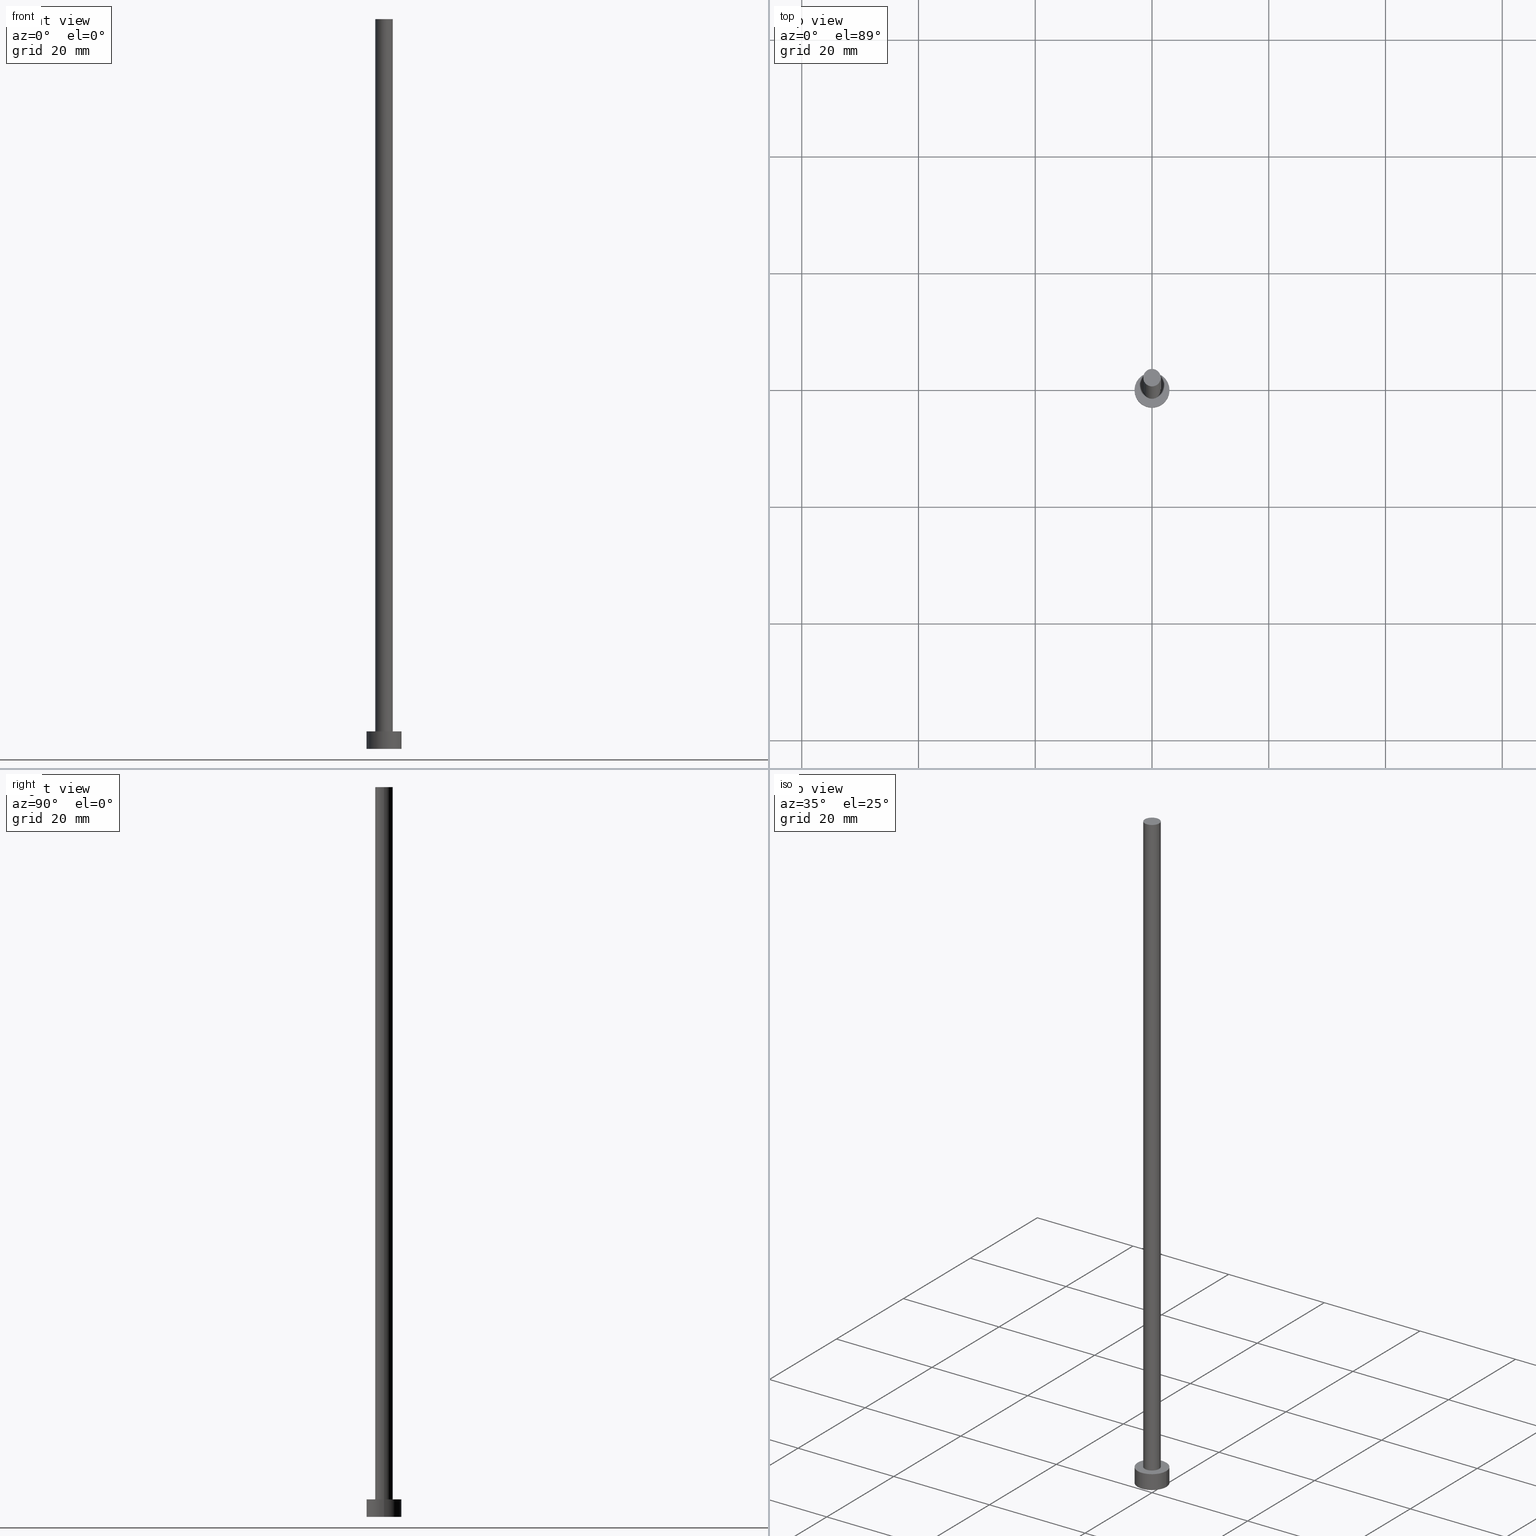
[diagram: canonical four-view strip — front | top / right | iso, engineering-drawing reading convention]
A machine part, canonical four-view strip (front | top / right | iso — engineering-drawing reading convention). The complete STEP part file that produces these views, byte-faithful:
ISO-10303-21;
HEADER;
FILE_DESCRIPTION (( 'STEP AP203' ),
    '1' );
FILE_NAME ('6e16.STEP',
    '2023-02-13T14:27:14',
    ( '' ),
    ( '' ),
    'SwSTEP 2.0',
    'SolidWorks 2019',
    '' );
FILE_SCHEMA (( 'CONFIG_CONTROL_DESIGN' ));
ENDSEC;

DATA;
#1 = APPROVAL ( #53, 'NEUR�EN�' ) ;
#2 = DIRECTION ( 'NONE',  ( 0.000000000000000000, 0.000000000000000000, 1.000000000000000000 ) ) ;
#3 = PRODUCT ( '6e16', '6e16', '', ( #25 ) ) ;
#4 = ORIENTED_EDGE ( 'NONE', *, *, #123, .T. ) ;
#5 = APPROVAL_PERSON_ORGANIZATION ( #157, #20, #119 ) ;
#6 = ORIENTED_EDGE ( 'NONE', *, *, #167, .F. ) ;
#7 = EDGE_LOOP ( 'NONE', ( #206, #4, #90, #148 ) ) ;
#8 = AXIS2_PLACEMENT_3D ( 'NONE', #182, #2, #85 ) ;
#9 = DIRECTION ( 'NONE',  ( -0.000000000000000000, -0.000000000000000000, -1.000000000000000000 ) ) ;
#10 = LINE ( 'NONE', #248, #233 ) ;
#11 = CARTESIAN_POINT ( 'NONE',  ( 0.000000000000000000, 0.000000000000000000, 0.000000000000000000 ) ) ;
#12 = PERSON ( 'NEUR�EN�', 'NEUR�EN�', 'NEUR�EN�', ('NEUR�EN�'), ('NEUR�EN�'), ('NEUR�EN�') ) ;
#13 = EDGE_CURVE ( 'NONE', #65, #198, #70, .T. ) ;
#14 = APPROVAL_STATUS ( 'not_yet_approved' ) ;
#15 = CIRCLE ( 'NONE', #8, 1.500000000000000222 ) ;
#16 = DATE_AND_TIME ( #77, #199 ) ;
#17 = CARTESIAN_POINT ( 'NONE',  ( 1.500000000000000222, 1.836970198721029934E-16, 125.0000000000000000 ) ) ;
#18 = AXIS2_PLACEMENT_3D ( 'NONE', #47, #114, #83 ) ;
#19 = LINE ( 'NONE', #122, #190 ) ;
#20 = APPROVAL ( #36, 'NEUR�EN�' ) ;
#21 = CC_DESIGN_SECURITY_CLASSIFICATION ( #158, ( #22 ) ) ;
#22 = PRODUCT_DEFINITION_FORMATION_WITH_SPECIFIED_SOURCE ( 'LIBOVOLN�', '', #3, .NOT_KNOWN. ) ;
#23 = CARTESIAN_POINT ( 'NONE',  ( 0.000000000000000000, 0.000000000000000000, 3.000000000000000000 ) ) ;
#24 = PRODUCT_DEFINITION ( 'NEZN�M�', '', #22, #228 ) ;
#25 = MECHANICAL_CONTEXT ( 'NONE', #162, 'mechanical' ) ;
#26 = DIRECTION ( 'NONE',  ( 1.000000000000000000, 0.000000000000000000, 0.000000000000000000 ) ) ;
#27 = CARTESIAN_POINT ( 'NONE',  ( -3.000000000000000444, 0.000000000000000000, 0.000000000000000000 ) ) ;
#28 = APPROVAL_PERSON_ORGANIZATION ( #156, #1, #217 ) ;
#29 = LINE ( 'NONE', #17, #67 ) ;
#30 = MANIFOLD_SOLID_BREP ( 'P�idat vysunut�m3', #35 ) ;
#31 = EDGE_CURVE ( 'NONE', #168, #42, #227, .T. ) ;
#32 = COORDINATED_UNIVERSAL_TIME_OFFSET ( 1, 0, .AHEAD. ) ;
#33 = LOCAL_TIME ( 15, 27, 14.00000000000000000, #175 ) ;
#34 = CYLINDRICAL_SURFACE ( 'NONE', #202, 1.500000000000000222 ) ;
#35 = CLOSED_SHELL ( 'NONE', ( #62, #38, #76, #89, #113, #91, #226 ) ) ;
#36 = APPROVAL_STATUS ( 'not_yet_approved' ) ;
#37 = CARTESIAN_POINT ( 'NONE',  ( 0.000000000000000000, 0.000000000000000000, 3.000000000000000000 ) ) ;
#38 = ADVANCED_FACE ( 'NONE', ( #192 ), #193, .T. ) ;
#39 = ORIENTED_EDGE ( 'NONE', *, *, #99, .F. ) ;
#40 = DIRECTION ( 'NONE',  ( -0.000000000000000000, -0.000000000000000000, -1.000000000000000000 ) ) ;
#41 = CARTESIAN_POINT ( 'NONE',  ( -1.500000000000000222, 0.000000000000000000, 125.0000000000000000 ) ) ;
#42 = VERTEX_POINT ( 'NONE', #27 ) ;
#43 =( NAMED_UNIT ( * ) PLANE_ANGLE_UNIT ( ) SI_UNIT ( $, .RADIAN. ) );
#44 = DIRECTION ( 'NONE',  ( -1.000000000000000000, 0.000000000000000000, 0.000000000000000000 ) ) ;
#45 = CC_DESIGN_PERSON_AND_ORGANIZATION_ASSIGNMENT ( #174, #251, ( #22 ) ) ;
#46 = FACE_BOUND ( 'NONE', #246, .T. ) ;
#47 = CARTESIAN_POINT ( 'NONE',  ( 0.000000000000000000, 0.000000000000000000, 3.000000000000000000 ) ) ;
#48 = ORIENTED_EDGE ( 'NONE', *, *, #13, .F. ) ;
#49 = CC_DESIGN_DATE_AND_TIME_ASSIGNMENT ( #16, #61, ( #158 ) ) ;
#50 = DIRECTION ( 'NONE',  ( 0.000000000000000000, 0.000000000000000000, 1.000000000000000000 ) ) ;
#51 = DIRECTION ( 'NONE',  ( 0.000000000000000000, 0.000000000000000000, 1.000000000000000000 ) ) ;
#52 = DIRECTION ( 'NONE',  ( 0.000000000000000000, 0.000000000000000000, 1.000000000000000000 ) ) ;
#53 = APPROVAL_STATUS ( 'not_yet_approved' ) ;
#54 = DATE_TIME_ROLE ( 'creation_date' ) ;
#55 = CALENDAR_DATE ( 2023, 13, 2 ) ;
#56 = FACE_OUTER_BOUND ( 'NONE', #60, .T. ) ;
#57 = ORIENTED_EDGE ( 'NONE', *, *, #99, .T. ) ;
#58 = PERSON_AND_ORGANIZATION ( #12, #149 ) ;
#59 = CARTESIAN_POINT ( 'NONE',  ( 3.000000000000000444, 3.673940397442060361E-16, 3.000000000000000000 ) ) ;
#60 = EDGE_LOOP ( 'NONE', ( #151, #39, #140, #242 ) ) ;
#61 = DATE_TIME_ROLE ( 'classification_date' ) ;
#62 = ADVANCED_FACE ( 'NONE', ( #247 ), #95, .T. ) ;
#63 = PRODUCT_DEFINITION_SHAPE ( 'NONE', 'NONE',  #24 ) ;
#64 = ORIENTED_EDGE ( 'NONE', *, *, #97, .F. ) ;
#65 = VERTEX_POINT ( 'NONE', #208 ) ;
#66 = FACE_OUTER_BOUND ( 'NONE', #239, .T. ) ;
#67 = VECTOR ( 'NONE', #153, 1000.000000000000000 ) ;
#68 = EDGE_CURVE ( 'NONE', #216, #147, #212, .T. ) ;
#69 = CARTESIAN_POINT ( 'NONE',  ( 0.000000000000000000, 0.000000000000000000, 3.000000000000000000 ) ) ;
#70 = CIRCLE ( 'NONE', #87, 3.000000000000000444 ) ;
#71 = ORIENTED_EDGE ( 'NONE', *, *, #213, .T. ) ;
#72 = APPLICATION_PROTOCOL_DEFINITION ( 'international standard', 'config_control_design', 1994, #162 ) ;
#73 = CARTESIAN_POINT ( 'NONE',  ( 0.000000000000000000, 0.000000000000000000, 125.0000000000000000 ) ) ;
#74 = DIRECTION ( 'NONE',  ( 1.000000000000000000, 0.000000000000000000, 0.000000000000000000 ) ) ;
#75 = PLANE ( 'NONE',  #207 ) ;
#76 = ADVANCED_FACE ( 'NONE', ( #66 ), #145, .T. ) ;
#77 = CALENDAR_DATE ( 2023, 13, 2 ) ;
#78 = PERSON_AND_ORGANIZATION_ROLE ( 'design_owner' ) ;
#79 = APPROVAL ( #14, 'NEUR�EN�' ) ;
#80 = CALENDAR_DATE ( 2023, 13, 2 ) ;
#81 = CARTESIAN_POINT ( 'NONE',  ( 3.000000000000000444, 3.673940397442060361E-16, 3.000000000000000000 ) ) ;
#82 = APPROVAL_ROLE ( '' ) ;
#83 = DIRECTION ( 'NONE',  ( 1.000000000000000000, 0.000000000000000000, -0.000000000000000000 ) ) ;
#84 = ORIENTED_EDGE ( 'NONE', *, *, #154, .T. ) ;
#85 = DIRECTION ( 'NONE',  ( 1.000000000000000000, 0.000000000000000000, 0.000000000000000000 ) ) ;
#86 = AXIS2_PLACEMENT_3D ( 'NONE', #236, #164, #74 ) ;
#87 = AXIS2_PLACEMENT_3D ( 'NONE', #23, #127, #209 ) ;
#88 = ORIENTED_EDGE ( 'NONE', *, *, #13, .T. ) ;
#89 = ADVANCED_FACE ( 'NONE', ( #46, #111 ), #189, .T. ) ;
#90 = ORIENTED_EDGE ( 'NONE', *, *, #31, .T. ) ;
#91 = ADVANCED_FACE ( 'NONE', ( #56 ), #34, .T. ) ;
#92 = DIRECTION ( 'NONE',  ( 0.000000000000000000, 0.000000000000000000, 1.000000000000000000 ) ) ;
#93 = VECTOR ( 'NONE', #96, 1000.000000000000000 ) ;
#94 = UNCERTAINTY_MEASURE_WITH_UNIT (LENGTH_MEASURE( 1.000000000000000082E-05 ), #224, 'distance_accuracy_value', 'NONE');
#95 = CYLINDRICAL_SURFACE ( 'NONE', #104, 1.500000000000000222 ) ;
#96 = DIRECTION ( 'NONE',  ( -0.000000000000000000, -0.000000000000000000, -1.000000000000000000 ) ) ;
#97 = EDGE_CURVE ( 'NONE', #110, #216, #10, .T. ) ;
#98 = LOCAL_TIME ( 15, 27, 14.00000000000000000, #32 ) ;
#99 = EDGE_CURVE ( 'NONE', #110, #201, #125, .T. ) ;
#100 = CALENDAR_DATE ( 2023, 13, 2 ) ;
#101 = CARTESIAN_POINT ( 'NONE',  ( 0.000000000000000000, 0.000000000000000000, 125.0000000000000000 ) ) ;
#102 = PERSON_AND_ORGANIZATION_ROLE ( 'creator' ) ;
#103 = DIRECTION ( 'NONE',  ( -0.000000000000000000, -0.000000000000000000, -1.000000000000000000 ) ) ;
#104 = AXIS2_PLACEMENT_3D ( 'NONE', #73, #244, #245 ) ;
#105 = ORIENTED_EDGE ( 'NONE', *, *, #167, .T. ) ;
#106 = DIRECTION ( 'NONE',  ( 1.000000000000000000, 0.000000000000000000, -0.000000000000000000 ) ) ;
#107 = AXIS2_PLACEMENT_3D ( 'NONE', #229, #50, #130 ) ;
#108 = AXIS2_PLACEMENT_3D ( 'NONE', #169, #9, #44 ) ;
#109 = EDGE_CURVE ( 'NONE', #65, #42, #19, .T. ) ;
#110 = VERTEX_POINT ( 'NONE', #41 ) ;
#111 = FACE_OUTER_BOUND ( 'NONE', #185, .T. ) ;
#112 = CC_DESIGN_APPROVAL ( #20, ( #24 ) ) ;
#113 = ADVANCED_FACE ( 'NONE', ( #117 ), #161, .F. ) ;
#114 = DIRECTION ( 'NONE',  ( 0.000000000000000000, 0.000000000000000000, 1.000000000000000000 ) ) ;
#115 = ORIENTED_EDGE ( 'NONE', *, *, #68, .F. ) ;
#116 = ORIENTED_EDGE ( 'NONE', *, *, #131, .T. ) ;
#117 = FACE_OUTER_BOUND ( 'NONE', #241, .T. ) ;
#118 = APPROVAL_DATE_TIME ( #249, #20 ) ;
#119 = APPROVAL_ROLE ( '' ) ;
#120 = SHAPE_DEFINITION_REPRESENTATION ( #63, #128 ) ;
#121 = ORIENTED_EDGE ( 'NONE', *, *, #178, .F. ) ;
#122 = CARTESIAN_POINT ( 'NONE',  ( -3.000000000000000444, 0.000000000000000000, 3.000000000000000000 ) ) ;
#123 = EDGE_CURVE ( 'NONE', #198, #168, #139, .T. ) ;
#124 = CARTESIAN_POINT ( 'NONE',  ( 0.000000000000000000, 0.000000000000000000, 0.000000000000000000 ) ) ;
#125 = CIRCLE ( 'NONE', #155, 1.500000000000000222 ) ;
#126 =( NAMED_UNIT ( * ) SI_UNIT ( $, .STERADIAN. ) SOLID_ANGLE_UNIT ( ) );
#127 = DIRECTION ( 'NONE',  ( 0.000000000000000000, 0.000000000000000000, 1.000000000000000000 ) ) ;
#128 = ADVANCED_BREP_SHAPE_REPRESENTATION ( '6e16', ( #30, #133 ), #188 ) ;
#129 = ORIENTED_EDGE ( 'NONE', *, *, #123, .F. ) ;
#130 = DIRECTION ( 'NONE',  ( 1.000000000000000000, 0.000000000000000000, 0.000000000000000000 ) ) ;
#131 = EDGE_CURVE ( 'NONE', #201, #147, #29, .T. ) ;
#132 = DIRECTION ( 'NONE',  ( 0.000000000000000000, 0.000000000000000000, 1.000000000000000000 ) ) ;
#133 = AXIS2_PLACEMENT_3D ( 'NONE', #11, #52, #150 ) ;
#134 = AXIS2_PLACEMENT_3D ( 'NONE', #69, #225, #146 ) ;
#135 = CC_DESIGN_DATE_AND_TIME_ASSIGNMENT ( #181, #54, ( #24 ) ) ;
#136 = APPLICATION_PROTOCOL_DEFINITION ( 'international standard', 'config_control_design', 1994, #243 ) ;
#137 = CC_DESIGN_APPROVAL ( #79, ( #22 ) ) ;
#138 = PERSON_AND_ORGANIZATION ( #12, #149 ) ;
#139 = LINE ( 'NONE', #81, #93 ) ;
#140 = ORIENTED_EDGE ( 'NONE', *, *, #97, .T. ) ;
#141 = SECURITY_CLASSIFICATION_LEVEL ( 'unclassified' ) ;
#142 = CARTESIAN_POINT ( 'NONE',  ( 1.500000000000000222, 1.836970198721029934E-16, 125.0000000000000000 ) ) ;
#143 = CC_DESIGN_PERSON_AND_ORGANIZATION_ASSIGNMENT ( #58, #237, ( #22 ) ) ;
#144 = AXIS2_PLACEMENT_3D ( 'NONE', #124, #255, #203 ) ;
#145 = CYLINDRICAL_SURFACE ( 'NONE', #134, 3.000000000000000444 ) ;
#146 = DIRECTION ( 'NONE',  ( -1.000000000000000000, 0.000000000000000000, 0.000000000000000000 ) ) ;
#147 = VERTEX_POINT ( 'NONE', #171 ) ;
#148 = ORIENTED_EDGE ( 'NONE', *, *, #109, .F. ) ;
#149 = ORGANIZATION ( 'NEUR�EN�', 'NEUR�EN�', '' ) ;
#150 = DIRECTION ( 'NONE',  ( 1.000000000000000000, 0.000000000000000000, 0.000000000000000000 ) ) ;
#151 = ORIENTED_EDGE ( 'NONE', *, *, #131, .F. ) ;
#152 = AXIS2_PLACEMENT_3D ( 'NONE', #187, #92, #26 ) ;
#153 = DIRECTION ( 'NONE',  ( -0.000000000000000000, -0.000000000000000000, -1.000000000000000000 ) ) ;
#154 = EDGE_CURVE ( 'NONE', #198, #65, #210, .T. ) ;
#155 = AXIS2_PLACEMENT_3D ( 'NONE', #177, #132, #218 ) ;
#156 = PERSON_AND_ORGANIZATION ( #12, #149 ) ;
#157 = PERSON_AND_ORGANIZATION ( #12, #149 ) ;
#158 = SECURITY_CLASSIFICATION ( '', '', #141 ) ;
#159 = PERSON_AND_ORGANIZATION ( #12, #149 ) ;
#160 = CALENDAR_DATE ( 2023, 13, 2 ) ;
#161 = PLANE ( 'NONE',  #196 ) ;
#162 = APPLICATION_CONTEXT ( 'configuration controlled 3d designs of mechanical parts and assemblies' ) ;
#163 = COORDINATED_UNIVERSAL_TIME_OFFSET ( 1, 0, .AHEAD. ) ;
#164 = DIRECTION ( 'NONE',  ( 0.000000000000000000, 0.000000000000000000, 1.000000000000000000 ) ) ;
#165 = ORIENTED_EDGE ( 'NONE', *, *, #109, .T. ) ;
#166 = LOCAL_TIME ( 15, 27, 14.00000000000000000, #163 ) ;
#167 = EDGE_CURVE ( 'NONE', #42, #168, #204, .T. ) ;
#168 = VERTEX_POINT ( 'NONE', #240 ) ;
#169 = CARTESIAN_POINT ( 'NONE',  ( 0.000000000000000000, 0.000000000000000000, 3.000000000000000000 ) ) ;
#170 = CC_DESIGN_PERSON_AND_ORGANIZATION_ASSIGNMENT ( #234, #102, ( #24 ) ) ;
#171 = CARTESIAN_POINT ( 'NONE',  ( 1.500000000000000222, 1.836970198721029934E-16, 3.000000000000000000 ) ) ;
#172 = FACE_OUTER_BOUND ( 'NONE', #221, .T. ) ;
#173 = CIRCLE ( 'NONE', #86, 1.500000000000000222 ) ;
#174 = PERSON_AND_ORGANIZATION ( #12, #149 ) ;
#175 = COORDINATED_UNIVERSAL_TIME_OFFSET ( 1, 0, .AHEAD. ) ;
#176 = APPROVAL_DATE_TIME ( #195, #79 ) ;
#177 = CARTESIAN_POINT ( 'NONE',  ( 0.000000000000000000, 0.000000000000000000, 125.0000000000000000 ) ) ;
#178 = EDGE_CURVE ( 'NONE', #201, #110, #173, .T. ) ;
#179 = DIRECTION ( 'NONE',  ( 1.000000000000000000, 0.000000000000000000, -0.000000000000000000 ) ) ;
#180 = ORIENTED_EDGE ( 'NONE', *, *, #213, .F. ) ;
#181 = DATE_AND_TIME ( #160, #33 ) ;
#182 = CARTESIAN_POINT ( 'NONE',  ( 0.000000000000000000, 0.000000000000000000, 3.000000000000000000 ) ) ;
#183 = CC_DESIGN_PERSON_AND_ORGANIZATION_ASSIGNMENT ( #254, #78, ( #3 ) ) ;
#184 = CC_DESIGN_APPROVAL ( #1, ( #158 ) ) ;
#185 = EDGE_LOOP ( 'NONE', ( #88, #84 ) ) ;
#186 = ORIENTED_EDGE ( 'NONE', *, *, #31, .F. ) ;
#187 = CARTESIAN_POINT ( 'NONE',  ( 0.000000000000000000, 0.000000000000000000, 0.000000000000000000 ) ) ;
#188 =( GEOMETRIC_REPRESENTATION_CONTEXT ( 3 ) GLOBAL_UNCERTAINTY_ASSIGNED_CONTEXT ( ( #94 ) ) GLOBAL_UNIT_ASSIGNED_CONTEXT ( ( #224, #43, #126 ) ) REPRESENTATION_CONTEXT ( 'NONE', 'WORKASPACE' ) );
#189 = PLANE ( 'NONE',  #18 ) ;
#190 = VECTOR ( 'NONE', #103, 1000.000000000000000 ) ;
#191 = PRODUCT_RELATED_PRODUCT_CATEGORY ( 'detail', '', ( #3 ) ) ;
#192 = FACE_OUTER_BOUND ( 'NONE', #7, .T. ) ;
#193 = CYLINDRICAL_SURFACE ( 'NONE', #108, 3.000000000000000444 ) ;
#194 = DIRECTION ( 'NONE',  ( 1.000000000000000000, 0.000000000000000000, 0.000000000000000000 ) ) ;
#195 = DATE_AND_TIME ( #100, #166 ) ;
#196 = AXIS2_PLACEMENT_3D ( 'NONE', #211, #252, #179 ) ;
#197 = COORDINATED_UNIVERSAL_TIME_OFFSET ( 1, 0, .AHEAD. ) ;
#198 = VERTEX_POINT ( 'NONE', #59 ) ;
#199 = LOCAL_TIME ( 15, 27, 14.00000000000000000, #250 ) ;
#200 = DATE_AND_TIME ( #80, #219 ) ;
#201 = VERTEX_POINT ( 'NONE', #142 ) ;
#202 = AXIS2_PLACEMENT_3D ( 'NONE', #101, #40, #215 ) ;
#203 = DIRECTION ( 'NONE',  ( 1.000000000000000000, 0.000000000000000000, 0.000000000000000000 ) ) ;
#204 = CIRCLE ( 'NONE', #144, 3.000000000000000444 ) ;
#205 = CC_DESIGN_PERSON_AND_ORGANIZATION_ASSIGNMENT ( #159, #235, ( #158 ) ) ;
#206 = ORIENTED_EDGE ( 'NONE', *, *, #154, .F. ) ;
#207 = AXIS2_PLACEMENT_3D ( 'NONE', #232, #51, #106 ) ;
#208 = CARTESIAN_POINT ( 'NONE',  ( -3.000000000000000444, 0.000000000000000000, 3.000000000000000000 ) ) ;
#209 = DIRECTION ( 'NONE',  ( 1.000000000000000000, 0.000000000000000000, 0.000000000000000000 ) ) ;
#210 = CIRCLE ( 'NONE', #253, 3.000000000000000444 ) ;
#211 = CARTESIAN_POINT ( 'NONE',  ( 0.000000000000000000, 0.000000000000000000, 0.000000000000000000 ) ) ;
#212 = CIRCLE ( 'NONE', #107, 1.500000000000000222 ) ;
#213 = EDGE_CURVE ( 'NONE', #147, #216, #15, .T. ) ;
#214 = APPROVAL_DATE_TIME ( #200, #1 ) ;
#215 = DIRECTION ( 'NONE',  ( -1.000000000000000000, 0.000000000000000000, 0.000000000000000000 ) ) ;
#216 = VERTEX_POINT ( 'NONE', #230 ) ;
#217 = APPROVAL_ROLE ( '' ) ;
#218 = DIRECTION ( 'NONE',  ( 1.000000000000000000, 0.000000000000000000, 0.000000000000000000 ) ) ;
#219 = LOCAL_TIME ( 15, 27, 14.00000000000000000, #197 ) ;
#220 = DIRECTION ( 'NONE',  ( -0.000000000000000000, -0.000000000000000000, -1.000000000000000000 ) ) ;
#221 = EDGE_LOOP ( 'NONE', ( #57, #222 ) ) ;
#222 = ORIENTED_EDGE ( 'NONE', *, *, #178, .T. ) ;
#223 = EDGE_LOOP ( 'NONE', ( #121, #116, #71, #64 ) ) ;
#224 =( LENGTH_UNIT ( ) NAMED_UNIT ( * ) SI_UNIT ( .MILLI., .METRE. ) );
#225 = DIRECTION ( 'NONE',  ( -0.000000000000000000, -0.000000000000000000, -1.000000000000000000 ) ) ;
#226 = ADVANCED_FACE ( 'NONE', ( #172 ), #75, .T. ) ;
#227 = CIRCLE ( 'NONE', #152, 3.000000000000000444 ) ;
#228 = DESIGN_CONTEXT ( 'detailed design', #243, 'design' ) ;
#229 = CARTESIAN_POINT ( 'NONE',  ( 0.000000000000000000, 0.000000000000000000, 3.000000000000000000 ) ) ;
#230 = CARTESIAN_POINT ( 'NONE',  ( -1.500000000000000222, 0.000000000000000000, 3.000000000000000000 ) ) ;
#231 = APPROVAL_PERSON_ORGANIZATION ( #138, #79, #82 ) ;
#232 = CARTESIAN_POINT ( 'NONE',  ( 0.000000000000000000, 0.000000000000000000, 125.0000000000000000 ) ) ;
#233 = VECTOR ( 'NONE', #220, 1000.000000000000000 ) ;
#234 = PERSON_AND_ORGANIZATION ( #12, #149 ) ;
#235 = PERSON_AND_ORGANIZATION_ROLE ( 'classification_officer' ) ;
#236 = CARTESIAN_POINT ( 'NONE',  ( 0.000000000000000000, 0.000000000000000000, 125.0000000000000000 ) ) ;
#237 = PERSON_AND_ORGANIZATION_ROLE ( 'creator' ) ;
#238 = DIRECTION ( 'NONE',  ( 0.000000000000000000, 0.000000000000000000, 1.000000000000000000 ) ) ;
#239 = EDGE_LOOP ( 'NONE', ( #129, #48, #165, #105 ) ) ;
#240 = CARTESIAN_POINT ( 'NONE',  ( 3.000000000000000444, 3.673940397442060361E-16, 0.000000000000000000 ) ) ;
#241 = EDGE_LOOP ( 'NONE', ( #6, #186 ) ) ;
#242 = ORIENTED_EDGE ( 'NONE', *, *, #68, .T. ) ;
#243 = APPLICATION_CONTEXT ( 'configuration controlled 3d designs of mechanical parts and assemblies' ) ;
#244 = DIRECTION ( 'NONE',  ( -0.000000000000000000, -0.000000000000000000, -1.000000000000000000 ) ) ;
#245 = DIRECTION ( 'NONE',  ( -1.000000000000000000, 0.000000000000000000, 0.000000000000000000 ) ) ;
#246 = EDGE_LOOP ( 'NONE', ( #115, #180 ) ) ;
#247 = FACE_OUTER_BOUND ( 'NONE', #223, .T. ) ;
#248 = CARTESIAN_POINT ( 'NONE',  ( -1.500000000000000222, 0.000000000000000000, 125.0000000000000000 ) ) ;
#249 = DATE_AND_TIME ( #55, #98 ) ;
#250 = COORDINATED_UNIVERSAL_TIME_OFFSET ( 1, 0, .AHEAD. ) ;
#251 = PERSON_AND_ORGANIZATION_ROLE ( 'design_supplier' ) ;
#252 = DIRECTION ( 'NONE',  ( 0.000000000000000000, 0.000000000000000000, 1.000000000000000000 ) ) ;
#253 = AXIS2_PLACEMENT_3D ( 'NONE', #37, #238, #194 ) ;
#254 = PERSON_AND_ORGANIZATION ( #12, #149 ) ;
#255 = DIRECTION ( 'NONE',  ( 0.000000000000000000, 0.000000000000000000, 1.000000000000000000 ) ) ;
ENDSEC;
END-ISO-10303-21;
